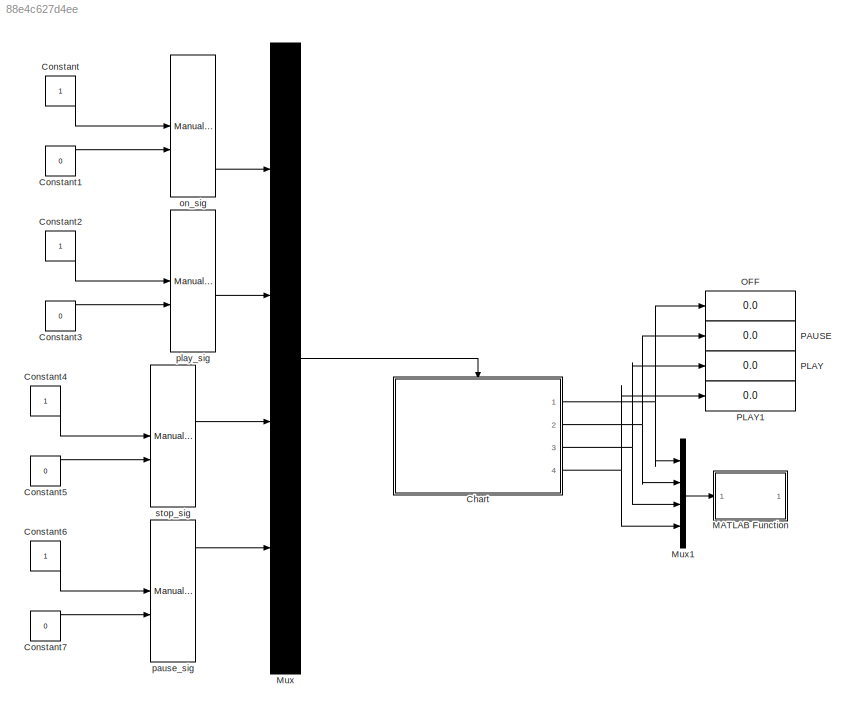
MODEL slx_88e4c627d4ee
KIND model
CONFIG AbsTol = auto
CONFIG EnableMultiTasking = off
CONFIG FixedStep = auto
CONFIG MaxStep = auto
CONFIG MinStep = auto
CONFIG RelTol = 1e-3
CONFIG SampleTimeConstraint = Unconstrained
CONFIG Solver = VariableStepAuto
CONFIG SolverName = VariableStepAuto
CONFIG StartTime = 0.0
CONFIG StopTime = inf
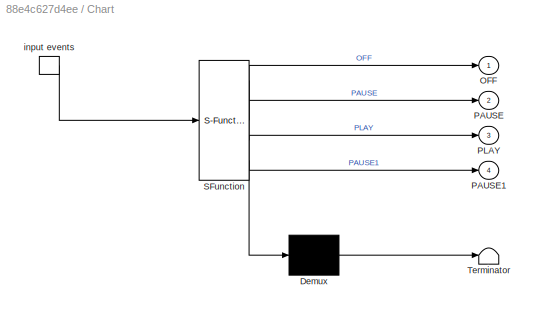
BLOCK [SubSystem] Chart
  ErrorFcn = Stateflow.Translate.translate
  PermitHierarchicalResolution = ExplicitOnly
  Ports = [0, 4, 0, 1]
  RequestExecContextInheritance = off
  SFBlockType = Chart
  TreatAsAtomicUnit = on
  Variant = off
BLOCK [Demux] Chart/ Demux 
  Outputs = 1
  Ports = [1, 1]
BLOCK [Outport] Chart/ OFF
  IconDisplay = Port number
BLOCK [Outport] Chart/ PAUSE
  IconDisplay = Port number
  Port = 2
BLOCK [Outport] Chart/ PLAY
  IconDisplay = Port number
  Port = 3
BLOCK [S-Function] Chart/ SFunction 
  EnableBusSupport = on
  FunctionName = sf_sfun
  PortCounts = [1 5]
  Ports = [1, 5]
  SFcnIsStateOwnerBlock = off
  SFunctionDeploymentMode = off
  Tag = Stateflow S-Function AudioPlayer 3
BLOCK [Terminator] Chart/ Terminator 
BLOCK [Outport] Chart/PAUSE1
  IconDisplay = Port number
  Port = 4
BLOCK [TriggerPort] Chart/input events
  Ports = [0, 1]
  ShowOutputPort = on
  StatesWhenEnabling = held
  TriggerType = either
  VariantControl = Variant
BLOCK [Constant] Constant
BLOCK [Constant] Constant1
  Value = 0
BLOCK [Constant] Constant2
BLOCK [Constant] Constant3
  Value = 0
BLOCK [Constant] Constant4
BLOCK [Constant] Constant5
  Value = 0
BLOCK [Constant] Constant6
BLOCK [Constant] Constant7
  Value = 0
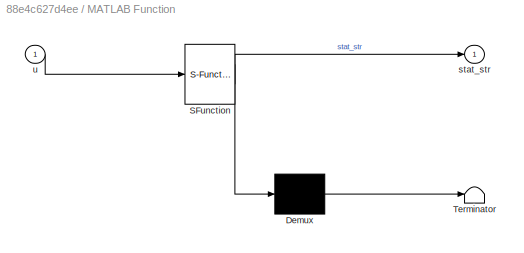
BLOCK [SubSystem] MATLAB Function
  ErrorFcn = Stateflow.Translate.translate
  PermitHierarchicalResolution = ExplicitOnly
  Ports = [1, 1]
  RequestExecContextInheritance = off
  SFBlockType = MATLAB Function
  TreatAsAtomicUnit = on
  Variant = off
BLOCK [Demux] MATLAB Function/ Demux 
  Outputs = 1
  Ports = [1, 1]
BLOCK [S-Function] MATLAB Function/ SFunction 
  EnableBusSupport = off
  FunctionName = sf_sfun
  PortCounts = [1 2]
  Ports = [1, 2]
  SFcnIsStateOwnerBlock = off
  SFunctionDeploymentMode = off
  Tag = Stateflow S-Function AudioPlayer 2
BLOCK [Terminator] MATLAB Function/ Terminator 
BLOCK [Outport] MATLAB Function/stat_str
  IconDisplay = Port number
BLOCK [Inport] MATLAB Function/u
  IconDisplay = Port number
BLOCK [Mux] Mux
  DisplayOption = bar
  Ports = [4, 1]
BLOCK [Mux] Mux1
  DisplayOption = bar
  Ports = [4, 1]
BLOCK [Display] OFF
  Decimation = 1
  Ports = [1]
BLOCK [Display] PAUSE
  Decimation = 1
  Ports = [1]
BLOCK [Display] PLAY
  Decimation = 1
  Ports = [1]
BLOCK [Display] PLAY1
  Decimation = 1
  Ports = [1]
BLOCK [ManualSwitch] on_sig
  CurrentSetting = 0
BLOCK [ManualSwitch] pause_sig
BLOCK [ManualSwitch] play_sig
  CurrentSetting = 0
BLOCK [ManualSwitch] stop_sig
NET Chart:1 -> Mux1:1, OFF:1
NET Chart:2 -> Mux1:2, PAUSE:1
NET Chart:3 -> Mux1:3, PLAY:1
NET Chart:4 -> Mux1:4, PLAY1:1
LINE Constant1:1 -> on_sig:2
LINE Constant2:1 -> play_sig:1
LINE Constant3:1 -> play_sig:2
LINE Constant4:1 -> stop_sig:1
LINE Constant5:1 -> stop_sig:2
LINE Constant6:1 -> pause_sig:1
LINE Constant7:1 -> pause_sig:2
LINE Constant:1 -> on_sig:1
LINE Mux1:1 -> MATLAB Function:1
LINE Mux:1 -> Chart:trigger
LINE on_sig:1 -> Mux:1
LINE pause_sig:1 -> Mux:4
LINE play_sig:1 -> Mux:2
LINE stop_sig:1 -> Mux:3
note: NET lines group one-source signal fan-out (src -> all destinations, sorted); 1:1 wires keep LINE
CHART MATLAB Function states=1 transitions=1
  STATE_LABEL 'eML_blk_kernel()'
  STATE_LABEL "SCRIPT:\nfunction stat_str = current_state(u)\n\nstat_str = strings(1)\n\n    if y[1]==1\n    stat_str = 'OFF'\n    else if y[2] ==1\n        stat_str = 'STOP'\n    else if y[3] ==1 \n        stat_str = 'PLAY'\n    else if y[4] ==1\n        stat_str = 'PAUSE'\n\n end\nreturn \n   \n"
CHART Chart states=4 transitions=8
  STATE_LABEL 'OFF'
  STATE_LABEL 'STOP'
  STATE_LABEL 'PLAY'
  STATE_LABEL 'PAUSE'
